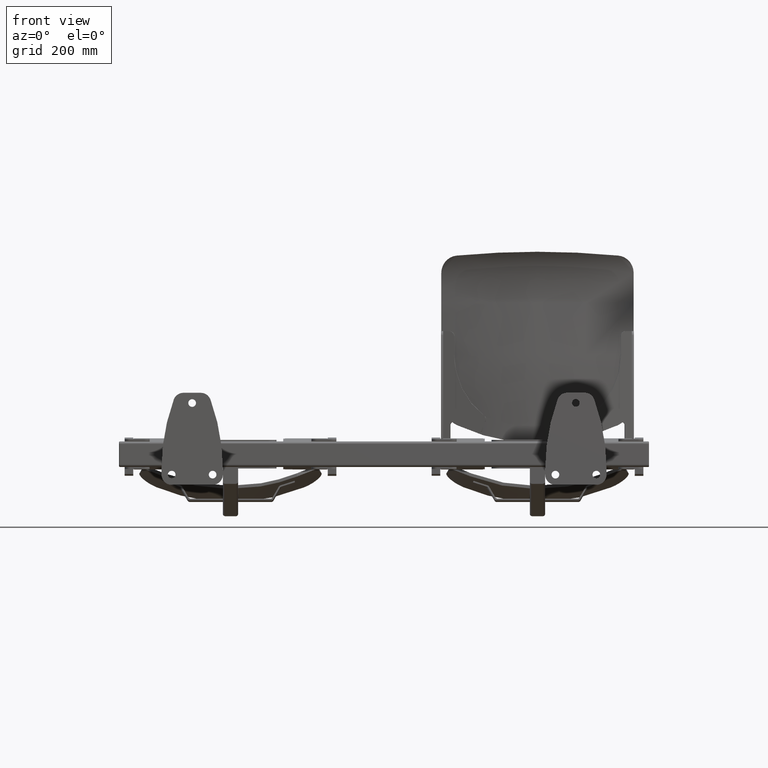
[diagram: clean part render]
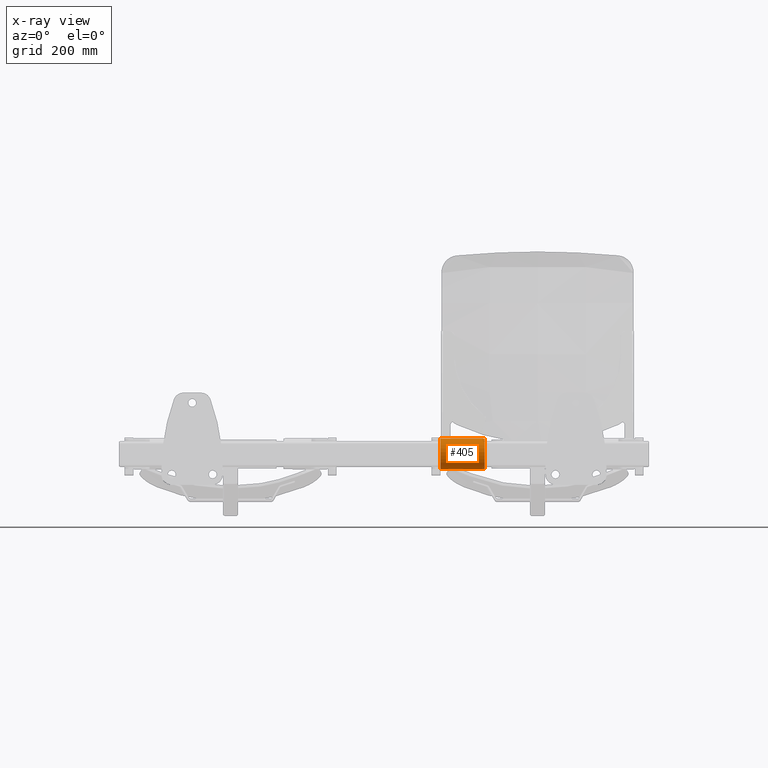
[diagram: x-ray — body ghosted, one internal face saturated and labeled with its STEP entity id]
A machine part, front view, then the same camera in x-ray: the body is ghosted and one INTERNAL B-rep face — a face not visible from any outside direction — is saturated and labeled: STEP entity #405.
In plain terms, the highlighted cylindrical surface (edge-blend (fillet) strip) has radius 30 mm, axis along (-1, 0, 0).
Its self-contained STEP definition (entity closure, byte-faithful):
#1 = CARTESIAN_POINT ( 'NONE',  ( -190.0000000000000000, 0.0000000000000000000, 0.0000000000000000000 ) ) ;
#2 = DIRECTION ( 'NONE',  ( -1.000000000000000000, -0.0000000000000000000, -0.0000000000000000000 ) ) ;
#3 = DIRECTION ( 'NONE',  ( 0.0000000000000000000, 0.0000000000000000000, -1.000000000000000000 ) ) ;
#37 = CARTESIAN_POINT ( 'NONE',  ( -102.9999999999999900, 0.0000000000000000000, 0.0000000000000000000 ) ) ;
#38 = DIRECTION ( 'NONE',  ( 1.000000000000000000, -0.0000000000000000000, -0.0000000000000000000 ) ) ;
#39 = DIRECTION ( 'NONE',  ( 0.0000000000000000000, 0.0000000000000000000, -1.000000000000000000 ) ) ;
#405 = ADVANCED_FACE ( 'NONE', ( #4152 ), #4159, .T. ) ;
#753 = VERTEX_POINT ( 'NONE', #8898 ) ;
#834 = EDGE_LOOP ( 'NONE', ( #1797, #1798, #1799, #1800 ) ) ;
#1180 = EDGE_CURVE ( 'NONE', #1684, #1683, #9033, .T. ) ;
#1194 = EDGE_CURVE ( 'NONE', #1682, #753, #9054, .T. ) ;
#1682 = VERTEX_POINT ( 'NONE', #10531 ) ;
#1683 = VERTEX_POINT ( 'NONE', #10232 ) ;
#1684 = VERTEX_POINT ( 'NONE', #10532 ) ;
#1797 = ORIENTED_EDGE ( 'NONE', *, *, #23773, .F. ) ;
#1798 = ORIENTED_EDGE ( 'NONE', *, *, #1194, .F. ) ;
#1799 = ORIENTED_EDGE ( 'NONE', *, *, #23775, .T. ) ;
#1800 = ORIENTED_EDGE ( 'NONE', *, *, #1180, .F. ) ;
#2404 = AXIS2_PLACEMENT_3D ( 'NONE', #4577, #4572, #4574 ) ;
#2937 = AXIS2_PLACEMENT_3D ( 'NONE', #1, #2, #3 ) ;
#2946 = AXIS2_PLACEMENT_3D ( 'NONE', #37, #38, #39 ) ;
#4152 = FACE_OUTER_BOUND ( 'NONE', #834, .T. ) ;
#4159 = CYLINDRICAL_SURFACE ( 'NONE', #2404, 30.00000000000000000 ) ;
#4572 = DIRECTION ( 'NONE',  ( -1.000000000000000000, 0.0000000000000000000, 0.0000000000000000000 ) ) ;
#4574 = DIRECTION ( 'NONE',  ( 0.0000000000000000000, 0.0000000000000000000, 1.000000000000000000 ) ) ;
#4577 = CARTESIAN_POINT ( 'NONE',  ( -102.9999999999999900, 0.0000000000000000000, 0.0000000000000000000 ) ) ;
#8898 = CARTESIAN_POINT ( 'NONE',  ( -102.9999999999999900, 3.673940397442058400E-015, -30.00000000000000000 ) ) ;
#9033 = CIRCLE ( 'NONE', #2937, 30.00000000000000000 ) ;
#9054 = CIRCLE ( 'NONE', #2946, 30.00000000000000000 ) ;
#10232 = CARTESIAN_POINT ( 'NONE',  ( -190.0000000000000000, 0.0000000000000000000, 30.00000000000000000 ) ) ;
#10531 = CARTESIAN_POINT ( 'NONE',  ( -102.9999999999999900, 0.0000000000000000000, 30.00000000000000000 ) ) ;
#10532 = CARTESIAN_POINT ( 'NONE',  ( -190.0000000000000000, 3.673940397442058400E-015, -30.00000000000000000 ) ) ;
#14857 = LINE ( 'NONE', #15388, #14859 ) ;
#14859 = VECTOR ( 'NONE', #15384, 1000.000000000000000 ) ;
#14860 = LINE ( 'NONE', #15393, #14862 ) ;
#14862 = VECTOR ( 'NONE', #15389, 1000.000000000000000 ) ;
#15384 = DIRECTION ( 'NONE',  ( -1.000000000000000000, 0.0000000000000000000, 0.0000000000000000000 ) ) ;
#15388 = CARTESIAN_POINT ( 'NONE',  ( -102.9999999999999900, 3.673940397442058400E-015, -30.00000000000000000 ) ) ;
#15389 = DIRECTION ( 'NONE',  ( -1.000000000000000000, 0.0000000000000000000, 0.0000000000000000000 ) ) ;
#15393 = CARTESIAN_POINT ( 'NONE',  ( -102.9999999999999900, 0.0000000000000000000, 30.00000000000000000 ) ) ;
#23773 = EDGE_CURVE ( 'NONE', #753, #1684, #14857, .T. ) ;
#23775 = EDGE_CURVE ( 'NONE', #1682, #1683, #14860, .T. ) ;